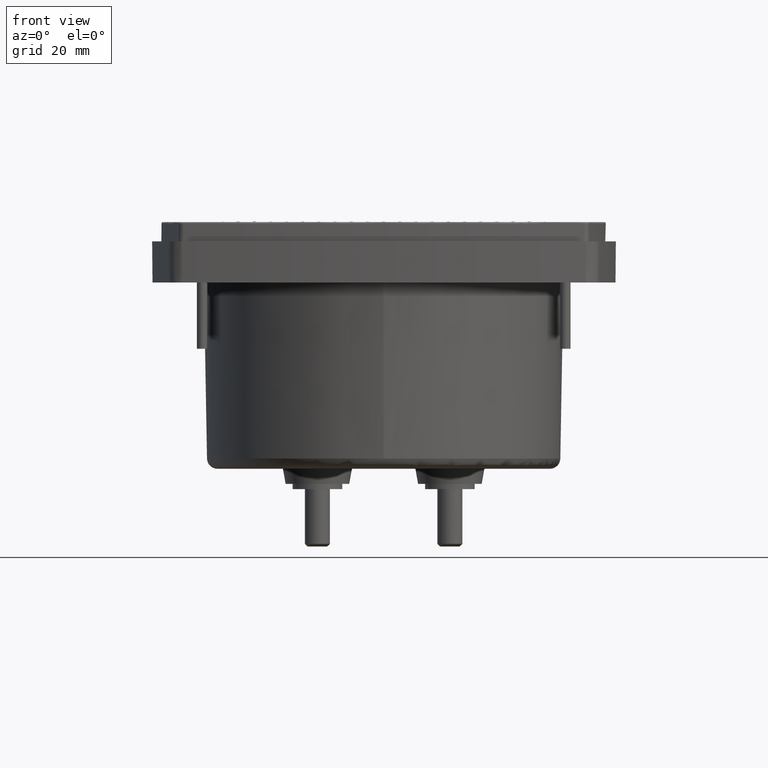
[diagram: clean part render]
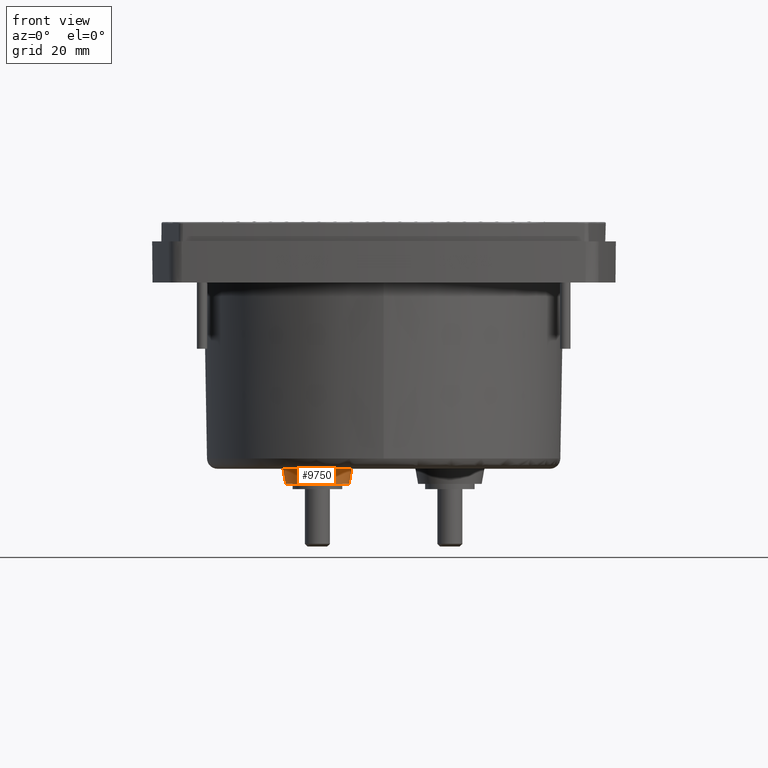
[diagram: same view with one face highlighted and labeled with its STEP entity id]
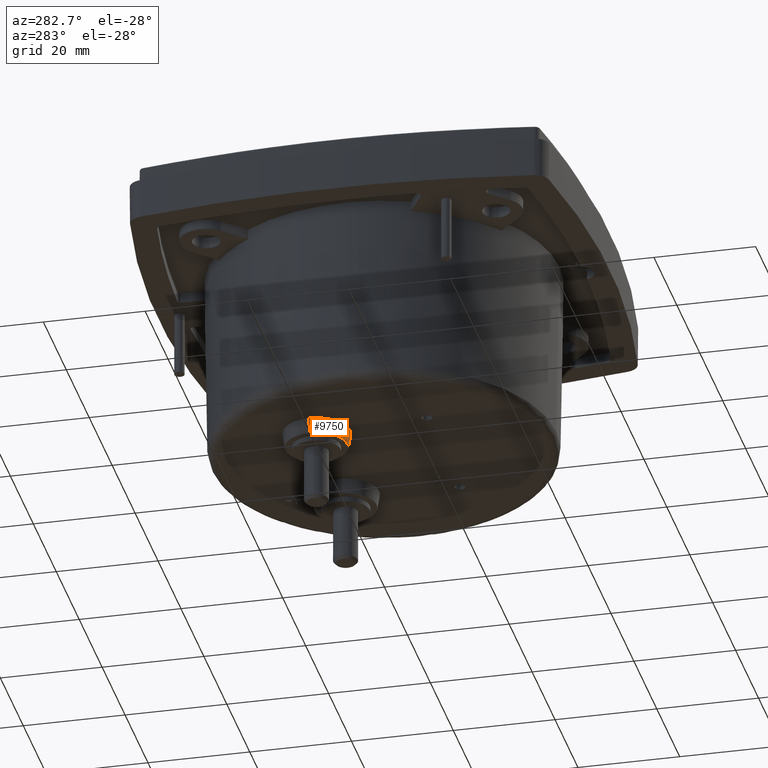
[diagram: same view with one face highlighted and labeled with its STEP entity id]
A machine part, front view. The second image highlights one B-rep face of the part: STEP entity #9750.
A second angle (auxiliary view) of the same face is appended — the face is thin or edge-on in the first view.
In plain terms, the highlighted conical surface has half-angle 10 deg.
Its self-contained STEP definition (entity closure, byte-faithful):
#282 = EDGE_CURVE ( 'NONE', #13588, #24538, #19935, .T. ) ;
#429 = EDGE_CURVE ( 'NONE', #24538, #16031, #27927, .T. ) ;
#454 = CARTESIAN_POINT ( 'NONE',  ( -0.2397545024490649879, 1.023712034509370206, -1.614173228344094602 ) ) ;
#3968 = EDGE_CURVE ( 'NONE', #29075, #16031, #16488, .T. ) ;
#4329 = CARTESIAN_POINT ( 'NONE',  ( -0.2598863230576453076, 1.023712034509370206, -1.728346456693220512 ) ) ;
#4968 = ORIENTED_EDGE ( 'NONE', *, *, #27016, .F. ) ;
#5785 = DIRECTION ( 'NONE',  ( 0.000000000000000000, 0.000000000000000000, 1.000000000000000000 ) ) ;
#6460 = DIRECTION ( 'NONE',  ( 0.000000000000000000, 0.000000000000000000, 1.000000000000000000 ) ) ;
#6848 = AXIS2_PLACEMENT_3D ( 'NONE', #29283, #6460, #20529 ) ;
#7242 = CARTESIAN_POINT ( 'NONE',  ( -0.7402012836875516699, 1.023712034509370206, -1.728346456693220512 ) ) ;
#7249 = DIRECTION ( 'NONE',  ( 0.1736481774664964950, 0.000000000000000000, 0.9848077530475499719 ) ) ;
#7599 = CARTESIAN_POINT ( 'NONE',  ( -0.7603331042961318786, 1.023712034509370206, -1.614173228344094602 ) ) ;
#9071 = DIRECTION ( 'NONE',  ( 1.000000000000000000, 0.000000000000000000, 0.000000000000000000 ) ) ;
#9716 = ORIENTED_EDGE ( 'NONE', *, *, #3968, .F. ) ;
#9750 = ADVANCED_FACE ( 'NONE', ( #14701 ), #23021, .T. ) ;
#10777 = AXIS2_PLACEMENT_3D ( 'NONE', #18121, #27023, #9071 ) ;
#12944 = CARTESIAN_POINT ( 'NONE',  ( -0.7603331042965264519, 1.023712034509370206, -1.614173228341856392 ) ) ;
#13588 = VERTEX_POINT ( 'NONE', #7242 ) ;
#14229 = DIRECTION ( 'NONE',  ( -0.1736481774664964950, 2.126576847121164648E-17, 0.9848077530475499719 ) ) ;
#14701 = FACE_OUTER_BOUND ( 'NONE', #22566, .T. ) ;
#16031 = VERTEX_POINT ( 'NONE', #29567 ) ;
#16488 = CIRCLE ( 'NONE', #6848, 0.2602893009239279909 ) ;
#18121 = CARTESIAN_POINT ( 'NONE',  ( -0.5000438033725984610, 1.023712034509370206, -1.728346456693220512 ) ) ;
#18955 = DIRECTION ( 'NONE',  ( 1.000000000000000000, 0.000000000000000000, 0.000000000000000000 ) ) ;
#19935 = CIRCLE ( 'NONE', #10777, 0.2401574803149531812 ) ;
#20529 = DIRECTION ( 'NONE',  ( 1.000000000000000000, 0.000000000000000000, 0.000000000000000000 ) ) ;
#20713 = ORIENTED_EDGE ( 'NONE', *, *, #429, .T. ) ;
#21107 = AXIS2_PLACEMENT_3D ( 'NONE', #26484, #5785, #18955 ) ;
#21168 = ORIENTED_EDGE ( 'NONE', *, *, #282, .T. ) ;
#22566 = EDGE_LOOP ( 'NONE', ( #4968, #21168, #20713, #9716 ) ) ;
#23021 = CONICAL_SURFACE ( 'NONE', #21107, 0.2602893009235334731, 0.1745329249959070850 ) ;
#23213 = VECTOR ( 'NONE', #7249, 39.37007874015748143 ) ;
#24363 = VECTOR ( 'NONE', #14229, 39.37007874015748143 ) ;
#24538 = VERTEX_POINT ( 'NONE', #4329 ) ;
#26484 = CARTESIAN_POINT ( 'NONE',  ( -0.5000438033725984610, 1.023712034509370206, -1.614173228344094602 ) ) ;
#27016 = EDGE_CURVE ( 'NONE', #13588, #29075, #27829, .T. ) ;
#27023 = DIRECTION ( 'NONE',  ( 0.000000000000000000, 0.000000000000000000, 1.000000000000000000 ) ) ;
#27829 = LINE ( 'NONE', #7599, #24363 ) ;
#27927 = LINE ( 'NONE', #454, #23213 ) ;
#29075 = VERTEX_POINT ( 'NONE', #12944 ) ;
#29283 = CARTESIAN_POINT ( 'NONE',  ( -0.5000438033725984610, 1.023712034509370206, -1.614173228341856392 ) ) ;
#29567 = CARTESIAN_POINT ( 'NONE',  ( -0.2397545024486703313, 1.023712034509370206, -1.614173228341856392 ) ) ;